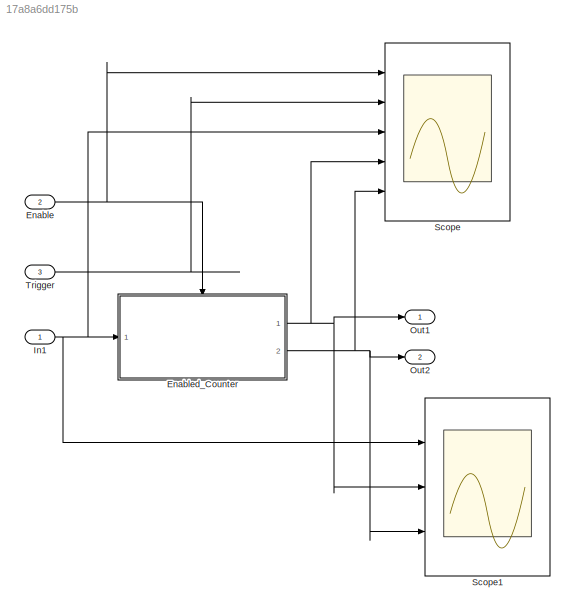
MODEL slx_17a8a6dd175b
KIND model
CONFIG AbsTol = auto
CONFIG EnableMultiTasking = on
CONFIG FixedStep = 1.000000
CONFIG MaxStep = auto
CONFIG MinStep = auto
CONFIG RelTol = 1e-3
CONFIG SampleTimeConstraint = Unconstrained
CONFIG Solver = FixedStepDiscrete
CONFIG SolverName = FixedStepDiscrete
CONFIG StartTime = 0.0
CONFIG StopTime = 100
WORKSPACE source: MAT-file member
WORKSPACE already_pp = 0
BLOCK [Inport] Enable
  IconDisplay = Port number
  OutDataTypeStr = boolean
  Port = 2
  PortDimensions = 1
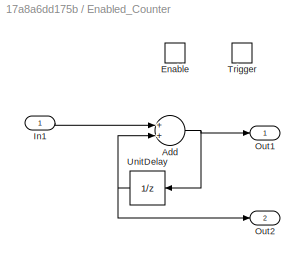
BLOCK [SubSystem] Enabled_Counter
  Ports = [1, 2, 1, 1]
  RequestExecContextInheritance = off
  TreatAsAtomicUnit = on
  Variant = off
BLOCK [Sum] Enabled_Counter/Add
  InputSameDT = off
  OutDataTypeStr = Inherit: Inherit via internal rule
  Ports = [2, 1]
  SaturateOnIntegerOverflow = off
BLOCK [EnablePort] Enabled_Counter/Enable
  Ports = []
  StatesWhenEnabling = reset
BLOCK [Inport] Enabled_Counter/In1
  IconDisplay = Port number
  OutDataTypeStr = double
  PortDimensions = 1
BLOCK [Outport] Enabled_Counter/Out1
  IconDisplay = Port number
  InitialOutput = 0
BLOCK [Outport] Enabled_Counter/Out2
  IconDisplay = Port number
  Port = 2
BLOCK [TriggerPort] Enabled_Counter/Trigger
  PortDimensions = 1
  Ports = []
  StatesWhenEnabling = held
  VariantControl = (inherit)
BLOCK [UnitDelay] Enabled_Counter/UnitDelay
  InputProcessing = Elements as channels (sample based)
  SampleTime = -1
BLOCK [Inport] In1
  IconDisplay = Port number
  OutDataTypeStr = double
  PortDimensions = 1
BLOCK [Outport] Out1
  IconDisplay = Port number
BLOCK [Outport] Out2
  IconDisplay = Port number
  Port = 2
BLOCK [Scope] Scope
  NumInputPorts = 5
  Ports = [5]
  ScopeSpecificationString = C++SS(StrPVP('Open','off'),StrPVP('TimeRange','auto'),StrPVP('TickLabels','OneTimeTick'),StrPVP('ShowLegends','off'),StrPVP('LimitDataPoints','off'),StrPVP('MaxDataPoints','5000'),StrPVP('SaveToWorkspace','off'),StrPVP('SaveName','ScopeData'),StrPVP('YMin','-0.125~-0.125~-120.86448~-82.82765~-5'),StrPVP('YMax','1.125~1.125~120.01993~98.48611~5'),StrPVP('BlockParamSampleInput','off'),StrPVP('BlockP...<+747ch>
BLOCK [Scope] Scope1
  NumInputPorts = 3
  Ports = [3]
  ScopeSpecificationString = C++SS(StrPVP('Open','off'),StrPVP('TimeRange','auto'),StrPVP('TickLabels','OneTimeTick'),StrPVP('ShowLegends','off'),StrPVP('LimitDataPoints','off'),StrPVP('MaxDataPoints','5000'),StrPVP('SaveToWorkspace','off'),StrPVP('SaveName','ScopeData1'),StrPVP('YMin','-123.48354~-85.50827~-1.00000'),StrPVP('YMax','123.80346~103.35383~1.00000'),StrPVP('BlockParamSampleInput','off'),StrPVP('BlockParamSampleTi...<+681ch>
BLOCK [Inport] Trigger
  IconDisplay = Port number
  OutDataTypeStr = boolean
  Port = 3
  PortDimensions = 1
NET Enable:1 -> Enabled_Counter:enable, Scope:1
NET Enabled_Counter/Add:1 -> Enabled_Counter/Out1:1, Enabled_Counter/UnitDelay:1
LINE Enabled_Counter/In1:1 -> Enabled_Counter/Add:1
NET Enabled_Counter/UnitDelay:1 -> Enabled_Counter/Add:2, Enabled_Counter/Out2:1
NET Enabled_Counter:1 -> Out1:1, Scope1:2, Scope:4
NET Enabled_Counter:2 -> Out2:1, Scope1:3, Scope:5
NET In1:1 -> Enabled_Counter:1, Scope1:1, Scope:3
NET Trigger:1 -> Enabled_Counter:trigger, Scope:2
note: NET lines group one-source signal fan-out (src -> all destinations, sorted); 1:1 wires keep LINE
